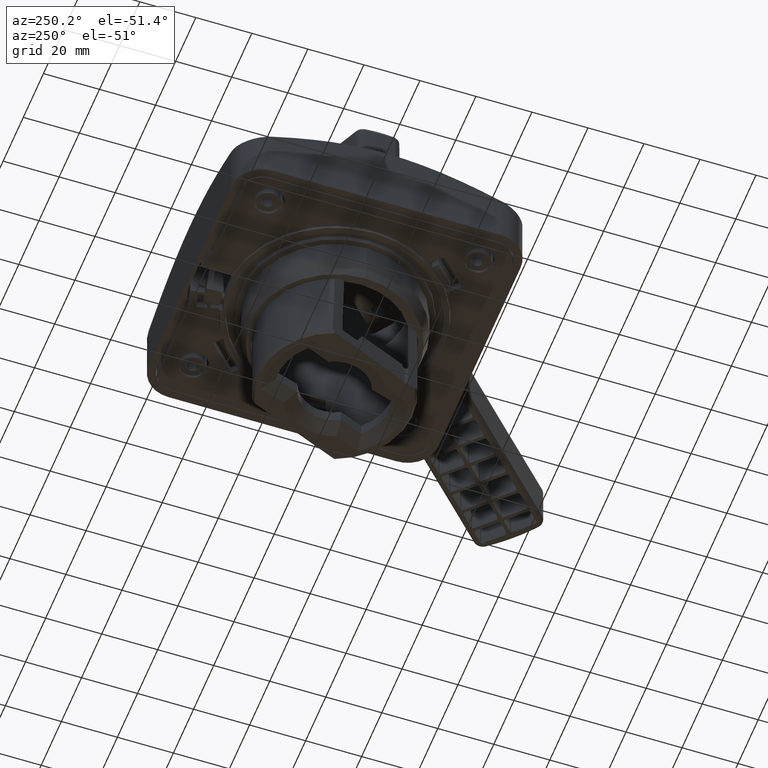
[diagram: clean part render]
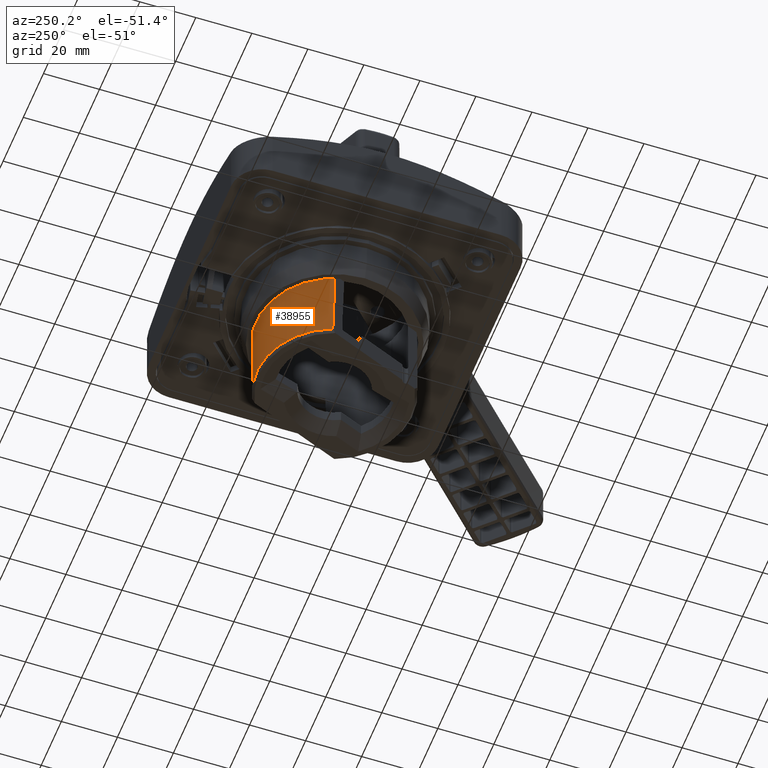
[diagram: same view with one face highlighted and labeled with its STEP entity id]
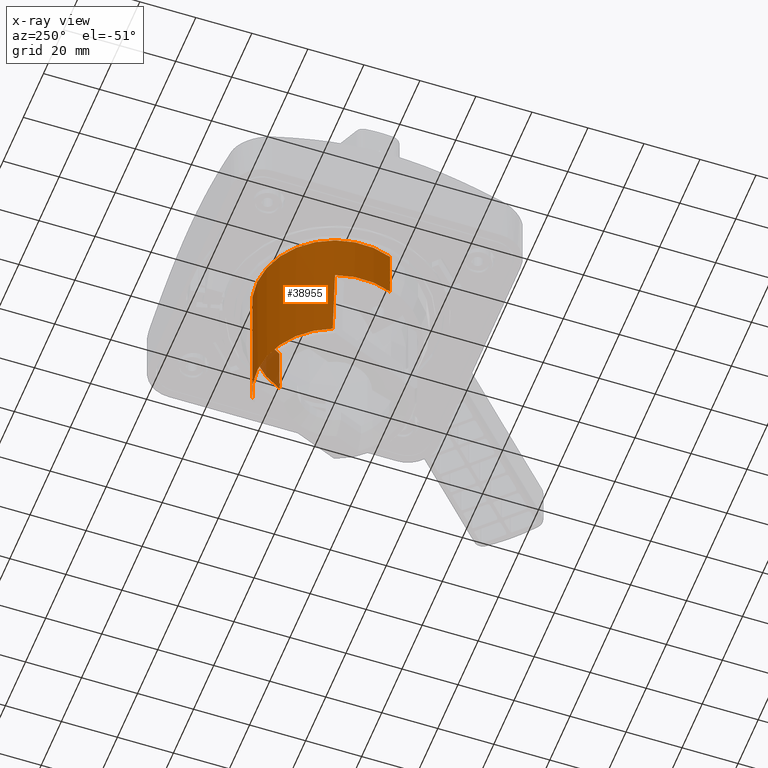
[diagram: x-ray of the same camera — body ghosted, the highlighted face saturated]
A machine part, auxiliary view. The second image highlights one B-rep face of the part: STEP entity #38955.
The next image is the same camera in x-ray: the body ghosted, the highlighted face saturated — about 5% of this face is hidden behind the body in this view.
In plain terms, the highlighted face is a SurfaceOfRevolution surface.
Its self-contained STEP definition (entity closure, byte-faithful):
#35061=CARTESIAN_POINT('',(0.E0,0.E0,-1.641936172948E0));
#35062=DIRECTION('',(0.E0,0.E0,1.E0));
#35063=DIRECTION('',(4.203474721279E-1,9.073632143060E-1,0.E0));
#35064=AXIS2_PLACEMENT_3D('',#35061,#35062,#35063);
#35501=CARTESIAN_POINT('',(0.E0,0.E0,-5.08E-1));
#35502=DIRECTION('',(0.E0,0.E0,1.E0));
#35503=DIRECTION('',(-9.421348524696E-1,3.352341267862E-1,0.E0));
#35504=AXIS2_PLACEMENT_3D('',#35501,#35502,#35503);
#35539=CARTESIAN_POINT('',(4.608600462661E-1,9.948135997898E-1,
-1.641936187452E0));
#35540=CARTESIAN_POINT('',(4.638802367841E-1,9.935718483285E-1,
-1.516052875133E0));
#35541=CARTESIAN_POINT('',(4.699738785367E-1,9.909602224708E-1,
-1.264214869691E0));
#35542=CARTESIAN_POINT('',(4.791172717149E-1,9.870461881305E-1,
-8.862361789086E-1));
#35543=CARTESIAN_POINT('',(4.852118812421E-1,9.844466599095E-1,
-6.341024203682E-1));
#35544=CARTESIAN_POINT('',(4.882874042098E-1,9.830788056085E-1,-5.08E-1));
#35549=CARTESIAN_POINT('',(-1.034148484989E0,3.679747792195E-1,-5.08E-1));
#35550=CARTESIAN_POINT('',(-1.032886330351E0,3.710951690324E-1,
-6.341024203679E-1));
#35551=CARTESIAN_POINT('',(-1.030308023892E0,3.771987869233E-1,
-8.862361743234E-1));
#35552=CARTESIAN_POINT('',(-1.026449712821E0,3.863658320545E-1,
-1.264214885736E0));
#35553=CARTESIAN_POINT('',(-1.023880553276E0,3.924775025517E-1,
-1.516052840749E0));
#35554=CARTESIAN_POINT('',(-1.022570602480E0,3.954687457907E-1,
-1.641936210598E0));
#35559=CARTESIAN_POINT('',(0.E0,0.E0,-5.08E-1));
#35560=DIRECTION('',(0.E0,0.E0,1.E0));
#35561=DIRECTION('',(9.271838545668E-1,3.746065934159E-1,0.E0));
#35562=AXIS2_PLACEMENT_3D('',#35559,#35560,#35561);
#36745=CARTESIAN_POINT('',(0.E0,0.E0,2.280000000001E-1));
#36746=DIRECTION('',(0.E0,0.E0,-1.E0));
#36747=DIRECTION('',(-9.271838545668E-1,-3.746065934159E-1,0.E0));
#36748=AXIS2_PLACEMENT_3D('',#36745,#36746,#36747);
#36781=DIRECTION('',(-1.051856491485E-3,-4.249776083671E-4,9.999993564958E-1));
#36782=VECTOR('',#36781,7.360004736195E-1);
#36783=CARTESIAN_POINT('',(-1.017737297366E0,-4.111925591464E-1,-5.08E-1));
#36784=LINE('',#36783,#36782);
#36788=DIRECTION('',(-1.051856491502E-3,-4.249776083652E-4,-9.999993564958E-1));
#36789=VECTOR('',#36788,7.360004736195E-1);
#36790=CARTESIAN_POINT('',(1.018511464242E0,4.115053428673E-1,
2.280000000001E-1));
#36791=LINE('',#36790,#36789);
#38195=VERTEX_POINT('',#35549);
#38196=VERTEX_POINT('',#35554);
#38228=CARTESIAN_POINT('',(4.882874042098E-1,9.830788056085E-1,-5.08E-1));
#38229=VERTEX_POINT('',#38228);
#38230=VERTEX_POINT('',#35539);
#38269=CARTESIAN_POINT('',(1.017737297366E0,4.111925591463E-1,-5.08E-1));
#38270=VERTEX_POINT('',#38269);
#38271=CARTESIAN_POINT('',(-1.017737297366E0,-4.111925591464E-1,-5.08E-1));
#38272=CARTESIAN_POINT('',(-1.018511464242E0,-4.115053428674E-1,
2.280000000001E-1));
#38273=VERTEX_POINT('',#38271);
#38274=VERTEX_POINT('',#38272);
#38275=CARTESIAN_POINT('',(1.018511464242E0,4.115053428673E-1,
2.280000000001E-1));
#38276=VERTEX_POINT('',#38275);
#38934=CARTESIAN_POINT('',(-1.018550802357E0,-4.115212364977E-1,
2.653987234591E-1));
#38935=CARTESIAN_POINT('',(-1.016505220358E0,-4.106947677230E-1,
-1.679334896407E0));
#38937=CARTESIAN_POINT('',(0.E0,0.E0,2.653987234589E-1));
#38938=DIRECTION('',(0.E0,0.E0,-1.E0));
#38939=AXIS1_PLACEMENT('',#38937,#38938);
#38940=SURFACE_OF_REVOLUTION('',#38936,#38939);
#38941=ORIENTED_EDGE('',*,*,#38646,.T.);
#38943=ORIENTED_EDGE('',*,*,#38942,.F.);
#38945=ORIENTED_EDGE('',*,*,#38944,.F.);
#38947=ORIENTED_EDGE('',*,*,#38946,.F.);
#38949=ORIENTED_EDGE('',*,*,#38948,.F.);
#38950=ORIENTED_EDGE('',*,*,#38924,.F.);
#38951=ORIENTED_EDGE('',*,*,#38594,.T.);
#38952=ORIENTED_EDGE('',*,*,#38619,.F.);
#38953=EDGE_LOOP('',(#38941,#38943,#38945,#38947,#38949,#38950,#38951,#38952));
#38954=FACE_OUTER_BOUND('',#38953,.F.);
#38955=ADVANCED_FACE('',(#38954),#38940,.T.);
#35065=CIRCLE('',#35064,1.096378623793E0);
#35505=CIRCLE('',#35504,1.097665034128E0);
#35545=B_SPLINE_CURVE_WITH_KNOTS('',3,(#35539,#35540,#35541,#35542,#35543,
#35544),.UNSPECIFIED.,.F.,.F.,(4,1,1,4),(0.E0,3.333333333333E-1,
6.666666666667E-1,1.E0),.UNSPECIFIED.);
#35555=B_SPLINE_CURVE_WITH_KNOTS('',3,(#35549,#35550,#35551,#35552,#35553,
#35554),.UNSPECIFIED.,.F.,.F.,(4,1,1,4),(0.E0,3.333333333333E-1,
6.666666666667E-1,1.E0),.UNSPECIFIED.);
#35563=CIRCLE('',#35562,1.097665034128E0);
#36749=CIRCLE('',#36748,1.0985E0);
#38594=EDGE_CURVE('',#38195,#38196,#35555,.T.);
#38619=EDGE_CURVE('',#38230,#38196,#35065,.T.);
#38646=EDGE_CURVE('',#38230,#38229,#35545,.T.);
#38924=EDGE_CURVE('',#38195,#38273,#35505,.T.);
#38936=POLYLINE('',(#38934,#38935));
#38942=EDGE_CURVE('',#38270,#38229,#35563,.T.);
#38944=EDGE_CURVE('',#38276,#38270,#36791,.T.);
#38946=EDGE_CURVE('',#38274,#38276,#36749,.T.);
#38948=EDGE_CURVE('',#38273,#38274,#36784,.T.);